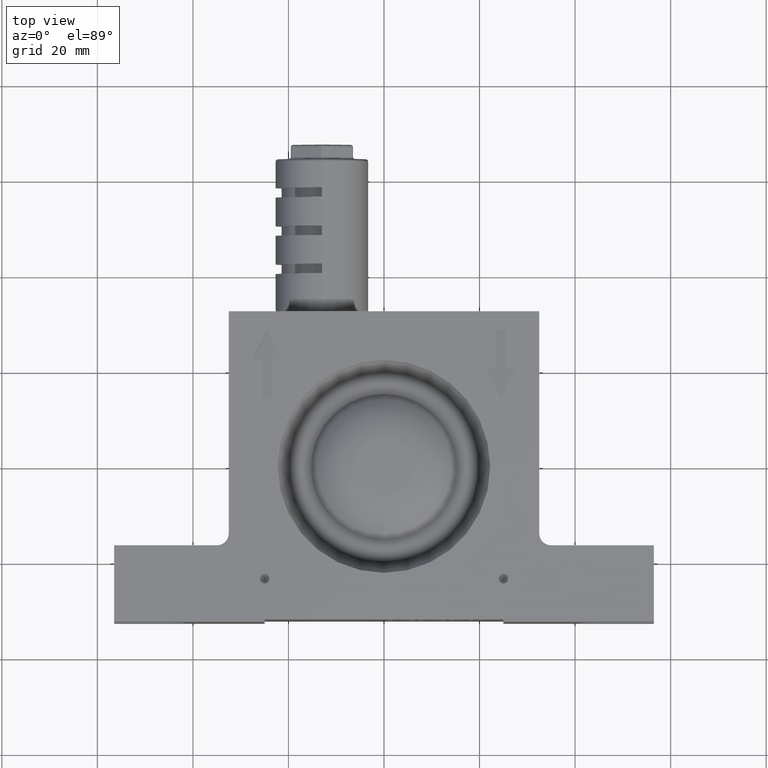
[diagram: clean part render]
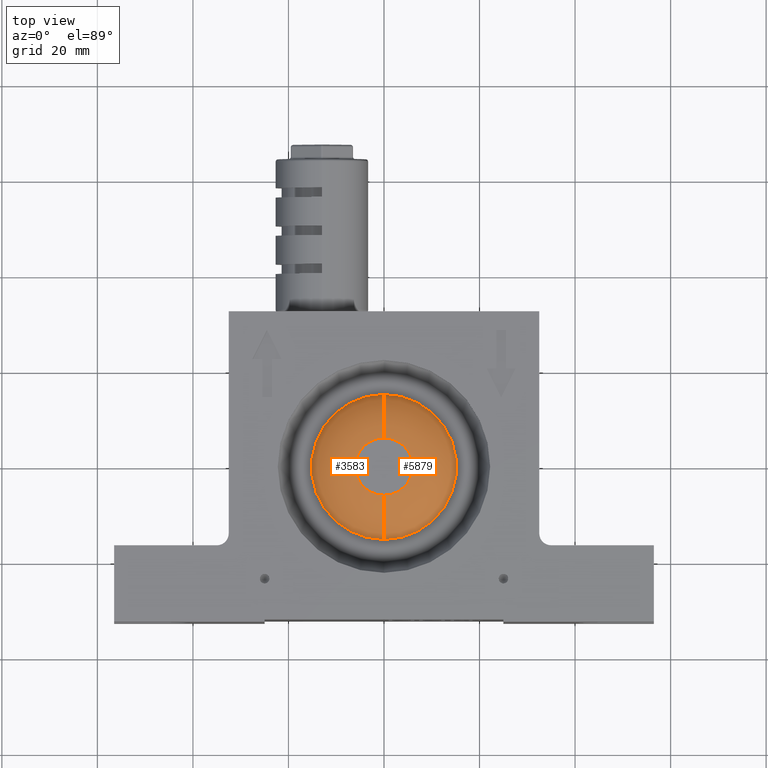
[diagram: same view with one multi-face feature highlighted, each face labeled with its STEP entity id]
A machine part, top view. The highlighted faces form ONE feature: a constant-radius fillet chain: 2 tangent blend faces with common blend radius 11.8 mm. The faces share edges in the B-rep.
Their STEP definitions:
[1] entity #5879 (Torus):
#85 = DIRECTION ( 'NONE',  ( 8.602726321297810600E-018, 1.224606353822375800E-016, 1.000000000000000000 ) ) ;
#148 = ORIENTED_EDGE ( 'NONE', *, *, #6478, .F. ) ;
#761 = ORIENTED_EDGE ( 'NONE', *, *, #4799, .F. ) ;
#790 = CARTESIAN_POINT ( 'NONE',  ( 9.389816379135560200E-016, 5.999999999999998200, -0.1000000000000007400 ) ) ;
#828 = CIRCLE ( 'NONE', #2237, 11.79999999999999700 ) ;
#1002 = ORIENTED_EDGE ( 'NONE', *, *, #5446, .T. ) ;
#1115 = DIRECTION ( 'NONE',  ( 8.602726321297810600E-018, 1.224606353822375800E-016, 1.000000000000000000 ) ) ;
#1210 = AXIS2_PLACEMENT_3D ( 'NONE', #4812, #1115, #5464 ) ;
#1426 = CIRCLE ( 'NONE', #2790, 11.80000000000000100 ) ;
#1557 = CARTESIAN_POINT ( 'NONE',  ( -3.038358461822026700E-015, -6.000000000000000000, 11.70000000000000100 ) ) ;
#1573 = CARTESIAN_POINT ( 'NONE',  ( 3.540626204963575200E-018, -8.270978742347319100E-016, 7.311570247933880200 ) ) ;
#1656 = CARTESIAN_POINT ( 'NONE',  ( 1.040493808504870100E-015, 6.000000000000000000, 11.70000000000000100 ) ) ;
#1856 = DIRECTION ( 'NONE',  ( 1.665334536937735100E-016, 1.000000000000000000, 0.0000000000000000000 ) ) ;
#2237 = AXIS2_PLACEMENT_3D ( 'NONE', #790, #5652, #1856 ) ;
#2341 = AXIS2_PLACEMENT_3D ( 'NONE', #2929, #85, #3887 ) ;
#2790 = AXIS2_PLACEMENT_3D ( 'NONE', #2855, #4446, #3417 ) ;
#2855 = CARTESIAN_POINT ( 'NONE',  ( -1.794207885900138000E-015, -6.000000000000001800, -0.09999999999999927000 ) ) ;
#2929 = CARTESIAN_POINT ( 'NONE',  ( 4.129308634222925400E-017, 3.673819061467370500E-017, 11.70000000000000100 ) ) ;
#2986 = ORIENTED_EDGE ( 'NONE', *, *, #4412, .T. ) ;
#3176 = DIRECTION ( 'NONE',  ( 8.602726321297810600E-018, 1.224606353822375800E-016, 1.000000000000000000 ) ) ;
#3417 = DIRECTION ( 'NONE',  ( -2.889981336085088800E-016, -1.000000000000000000, 0.0000000000000000000 ) ) ;
#3616 = VERTEX_POINT ( 'NONE', #1656 ) ;
#3699 = VERTEX_POINT ( 'NONE', #5432 ) ;
#3730 = AXIS2_PLACEMENT_3D ( 'NONE', #1573, #3176, #6945 ) ;
#3748 = FACE_OUTER_BOUND ( 'NONE', #4017, .T. ) ;
#3887 = DIRECTION ( 'NONE',  ( 1.665334536937735100E-016, 1.000000000000000000, 0.0000000000000000000 ) ) ;
#4017 = EDGE_LOOP ( 'NONE', ( #761, #1002, #2986, #148 ) ) ;
#4206 = CARTESIAN_POINT ( 'NONE',  ( -4.384021208335229300E-015, -15.18197290673095300, 7.311570247933882000 ) ) ;
#4412 = EDGE_CURVE ( 'NONE', #3699, #3616, #828, .T. ) ;
#4446 = DIRECTION ( 'NONE',  ( -1.000000000000000000, 2.889981336085088300E-016, 8.602726321297775100E-018 ) ) ;
#4590 = CIRCLE ( 'NONE', #3730, 15.18197290673095200 ) ;
#4799 = EDGE_CURVE ( 'NONE', #5575, #6273, #1426, .T. ) ;
#4812 = CARTESIAN_POINT ( 'NONE',  ( -6.021908424908500500E-017, -1.734723475976804900E-015, -0.1000000000000000100 ) ) ;
#5094 = TOROIDAL_SURFACE ( 'NONE', #1210, 6.000000000000000000, 11.79999999999999900 ) ;
#5432 = CARTESIAN_POINT ( 'NONE',  ( 2.531847008248166400E-015, 15.18197290673095300, 7.311570247933878400 ) ) ;
#5446 = EDGE_CURVE ( 'NONE', #5575, #3699, #4590, .T. ) ;
#5464 = DIRECTION ( 'NONE',  ( 1.665334536937734800E-016, 1.000000000000000000, -1.224606353822375800E-016 ) ) ;
#5575 = VERTEX_POINT ( 'NONE', #4206 ) ;
#5652 = DIRECTION ( 'NONE',  ( 1.000000000000000000, -1.665334536937734800E-016, -8.602726321297790500E-018 ) ) ;
#5849 = CIRCLE ( 'NONE', #2341, 6.000000000000000000 ) ;
#5879 = ADVANCED_FACE ( 'NONE', ( #3748 ), #5094, .T. ) ;
#6273 = VERTEX_POINT ( 'NONE', #1557 ) ;
#6478 = EDGE_CURVE ( 'NONE', #6273, #3616, #5849, .T. ) ;
#6945 = DIRECTION ( 'NONE',  ( -1.665334536937734600E-016, -1.000000000000000000, 1.142620584711829400E-016 ) ) ;
[2] entity #3583 (Torus):
#790 = CARTESIAN_POINT ( 'NONE',  ( 9.389816379135560200E-016, 5.999999999999998200, -0.1000000000000007400 ) ) ;
#828 = CIRCLE ( 'NONE', #2237, 11.79999999999999700 ) ;
#1426 = CIRCLE ( 'NONE', #2790, 11.80000000000000100 ) ;
#1466 = DIRECTION ( 'NONE',  ( 8.602726321297810600E-018, 1.224606353822375800E-016, 1.000000000000000000 ) ) ;
#1557 = CARTESIAN_POINT ( 'NONE',  ( -3.038358461822026700E-015, -6.000000000000000000, 11.70000000000000100 ) ) ;
#1656 = CARTESIAN_POINT ( 'NONE',  ( 1.040493808504870100E-015, 6.000000000000000000, 11.70000000000000100 ) ) ;
#1786 = DIRECTION ( 'NONE',  ( 8.602726321297810600E-018, 1.224606353822375800E-016, 1.000000000000000000 ) ) ;
#1856 = DIRECTION ( 'NONE',  ( 1.665334536937735100E-016, 1.000000000000000000, 0.0000000000000000000 ) ) ;
#2146 = DIRECTION ( 'NONE',  ( 1.665334536937734800E-016, 1.000000000000000000, -1.224606353822375800E-016 ) ) ;
#2237 = AXIS2_PLACEMENT_3D ( 'NONE', #790, #5652, #1856 ) ;
#2486 = ORIENTED_EDGE ( 'NONE', *, *, #4266, .F. ) ;
#2790 = AXIS2_PLACEMENT_3D ( 'NONE', #2855, #4446, #3417 ) ;
#2855 = CARTESIAN_POINT ( 'NONE',  ( -1.794207885900138000E-015, -6.000000000000001800, -0.09999999999999927000 ) ) ;
#3066 = DIRECTION ( 'NONE',  ( -1.665334536937734600E-016, -1.000000000000000000, 1.142620584711829400E-016 ) ) ;
#3417 = DIRECTION ( 'NONE',  ( -2.889981336085088800E-016, -1.000000000000000000, 0.0000000000000000000 ) ) ;
#3534 = FACE_OUTER_BOUND ( 'NONE', #4470, .T. ) ;
#3583 = ADVANCED_FACE ( 'NONE', ( #3534 ), #5400, .T. ) ;
#3616 = VERTEX_POINT ( 'NONE', #1656 ) ;
#3624 = AXIS2_PLACEMENT_3D ( 'NONE', #4762, #5848, #2146 ) ;
#3699 = VERTEX_POINT ( 'NONE', #5432 ) ;
#3771 = CIRCLE ( 'NONE', #5934, 15.18197290673095200 ) ;
#4206 = CARTESIAN_POINT ( 'NONE',  ( -4.384021208335229300E-015, -15.18197290673095300, 7.311570247933882000 ) ) ;
#4263 = ORIENTED_EDGE ( 'NONE', *, *, #4412, .F. ) ;
#4266 = EDGE_CURVE ( 'NONE', #3616, #6273, #4785, .T. ) ;
#4406 = AXIS2_PLACEMENT_3D ( 'NONE', #5022, #1786, #6620 ) ;
#4412 = EDGE_CURVE ( 'NONE', #3699, #3616, #828, .T. ) ;
#4446 = DIRECTION ( 'NONE',  ( -1.000000000000000000, 2.889981336085088300E-016, 8.602726321297775100E-018 ) ) ;
#4470 = EDGE_LOOP ( 'NONE', ( #6855, #5378, #2486, #4263 ) ) ;
#4762 = CARTESIAN_POINT ( 'NONE',  ( -6.021908424908500500E-017, -1.734723475976804900E-015, -0.1000000000000000100 ) ) ;
#4785 = CIRCLE ( 'NONE', #4406, 6.000000000000000000 ) ;
#4799 = EDGE_CURVE ( 'NONE', #5575, #6273, #1426, .T. ) ;
#5022 = CARTESIAN_POINT ( 'NONE',  ( 4.129308634222925400E-017, 3.673819061467370500E-017, 11.70000000000000100 ) ) ;
#5037 = EDGE_CURVE ( 'NONE', #3699, #5575, #3771, .T. ) ;
#5378 = ORIENTED_EDGE ( 'NONE', *, *, #4799, .T. ) ;
#5400 = TOROIDAL_SURFACE ( 'NONE', #3624, 6.000000000000000000, 11.79999999999999900 ) ;
#5432 = CARTESIAN_POINT ( 'NONE',  ( 2.531847008248166400E-015, 15.18197290673095300, 7.311570247933878400 ) ) ;
#5575 = VERTEX_POINT ( 'NONE', #4206 ) ;
#5652 = DIRECTION ( 'NONE',  ( 1.000000000000000000, -1.665334536937734800E-016, -8.602726321297790500E-018 ) ) ;
#5848 = DIRECTION ( 'NONE',  ( 8.602726321297810600E-018, 1.224606353822375800E-016, 1.000000000000000000 ) ) ;
#5934 = AXIS2_PLACEMENT_3D ( 'NONE', #6887, #1466, #3066 ) ;
#6273 = VERTEX_POINT ( 'NONE', #1557 ) ;
#6620 = DIRECTION ( 'NONE',  ( 1.665334536937735100E-016, 1.000000000000000000, 0.0000000000000000000 ) ) ;
#6855 = ORIENTED_EDGE ( 'NONE', *, *, #5037, .T. ) ;
#6887 = CARTESIAN_POINT ( 'NONE',  ( 3.540626204963575200E-018, -8.270978742347319100E-016, 7.311570247933880200 ) ) ;